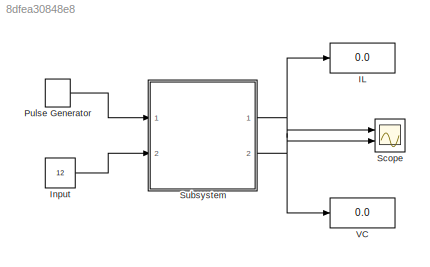
MODEL slx_8dfea30848e8
KIND model
CONFIG AbsTol = auto
CONFIG EnableMultiTasking = on
CONFIG FixedStep = auto
CONFIG MaxStep = auto
CONFIG MinStep = auto
CONFIG RelTol = 1e-3
CONFIG SampleTimeConstraint = Unconstrained
CONFIG SolverName = ode45
CONFIG StartTime = 0.0
CONFIG StopTime = 0.01
BLOCK [Display] IL
  Decimation = 1
  Ports = [1]
BLOCK [Constant] Input
  Value = 12
BLOCK [DiscretePulseGenerator] Pulse Generator
  Period = 1/5000
  Ports = [0, 1]
  PulseType = Time based
  PulseWidth = .25*100
BLOCK [Scope] Scope
  Floating = off
  NumInputPorts = 2
  Ports = [2]
  ScopeSpecificationString = Simulink.scopes.TimeScopeBlockCfg('CurrentConfiguration', extmgr.ConfigurationSet(extmgr.Configuration('Core','General UI',true,'FigureColor',[0.501960784313725 0.501960784313725 0.501960784313725]),extmgr.Configuration('Core','Source UI',true),extmgr.Configuration('Sources','WiredSimulink',true,'DataLogging',true,'DataLoggingSaveFormat','StructureWithTime','DataLoggingLimitDataPoints',true,'DataL...<+4067ch>
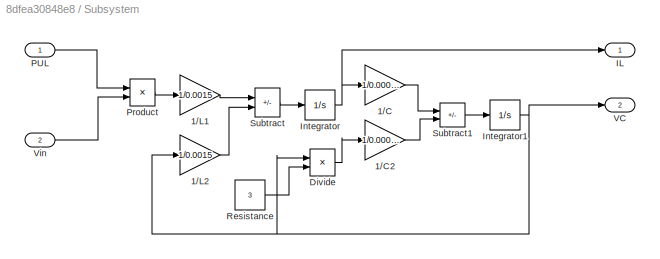
BLOCK [SubSystem] Subsystem
  Ports = [2, 2]
  RequestExecContextInheritance = off
BLOCK [Gain] Subsystem/1//C
  Gain = 1/0.000250
BLOCK [Gain] Subsystem/1//C2
  Gain = 1/0.000250
BLOCK [Gain] Subsystem/1//L1
  Gain = 1/0.0015
BLOCK [Gain] Subsystem/1//L2
  Gain = 1/0.0015
BLOCK [Product] Subsystem/Divide
  Inputs = */
  Ports = [2, 1]
BLOCK [Outport] Subsystem/IL
BLOCK [Integrator] Subsystem/Integrator
  Ports = [1, 1]
BLOCK [Integrator] Subsystem/Integrator1
  Ports = [1, 1]
BLOCK [Inport] Subsystem/PUL
BLOCK [Product] Subsystem/Product
  Ports = [2, 1]
BLOCK [Constant] Subsystem/Resistance
  Value = 3
BLOCK [Sum] Subsystem/Subtract
  IconShape = rectangular
  Inputs = +-
  Ports = [2, 1]
BLOCK [Sum] Subsystem/Subtract1
  IconShape = rectangular
  Inputs = +-
  Ports = [2, 1]
BLOCK [Outport] Subsystem/VC
  Port = 2
BLOCK [Inport] Subsystem/Vin
  Port = 2
BLOCK [Display] VC
  Decimation = 1
  Ports = [1]
LINE Input:1 -> Subsystem:2
LINE Pulse Generator:1 -> Subsystem:1
LINE Subsystem/1//C2:1 -> Subsystem/Subtract1:2
LINE Subsystem/1//C:1 -> Subsystem/Subtract1:1
LINE Subsystem/1//L1:1 -> Subsystem/Subtract:1
LINE Subsystem/1//L2:1 -> Subsystem/Subtract:2
LINE Subsystem/Divide:1 -> Subsystem/1//C2:1
NET Subsystem/Integrator1:1 -> Subsystem/1//L2:1, Subsystem/Divide:1, Subsystem/VC:1
NET Subsystem/Integrator:1 -> Subsystem/1//C:1, Subsystem/IL:1
LINE Subsystem/PUL:1 -> Subsystem/Product:1
LINE Subsystem/Product:1 -> Subsystem/1//L1:1
LINE Subsystem/Resistance:1 -> Subsystem/Divide:2
LINE Subsystem/Subtract1:1 -> Subsystem/Integrator1:1
LINE Subsystem/Subtract:1 -> Subsystem/Integrator:1
LINE Subsystem/Vin:1 -> Subsystem/Product:2
NET Subsystem:1 -> IL:1, Scope:1
NET Subsystem:2 -> Scope:2, VC:1
note: NET lines group one-source signal fan-out (src -> all destinations, sorted); 1:1 wires keep LINE
